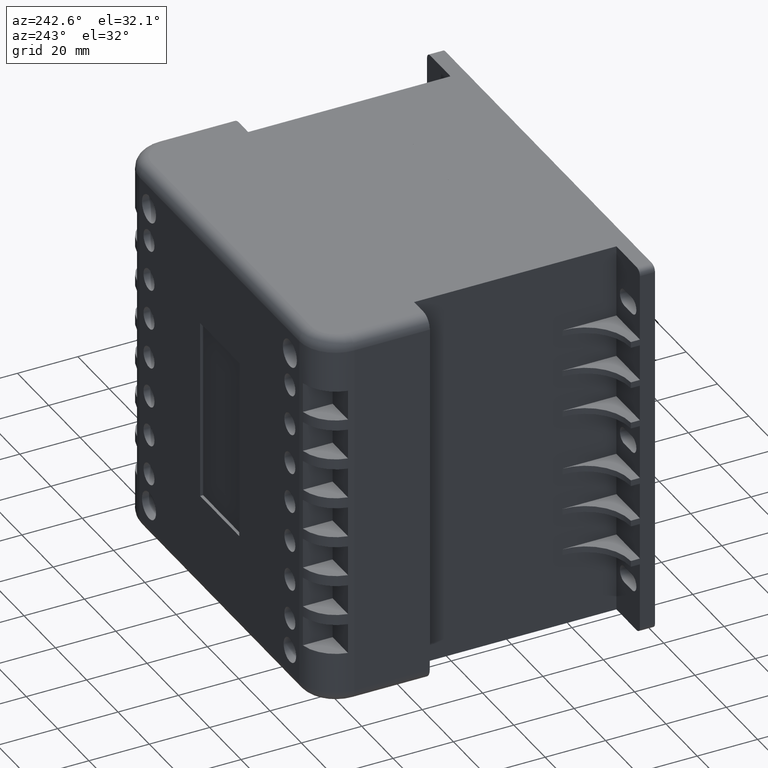
[diagram: clean part render]
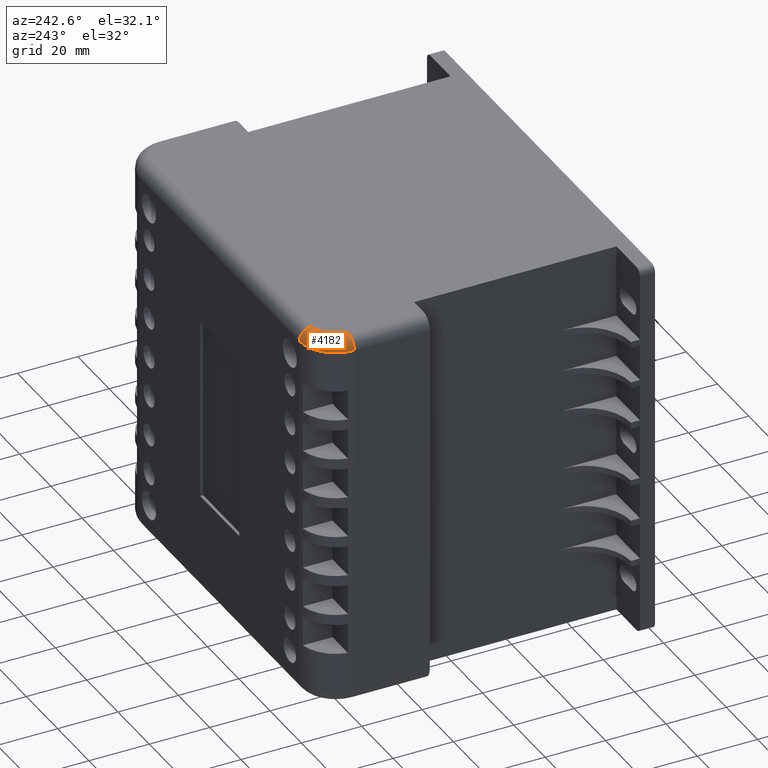
[diagram: same view with one face highlighted and labeled with its STEP entity id]
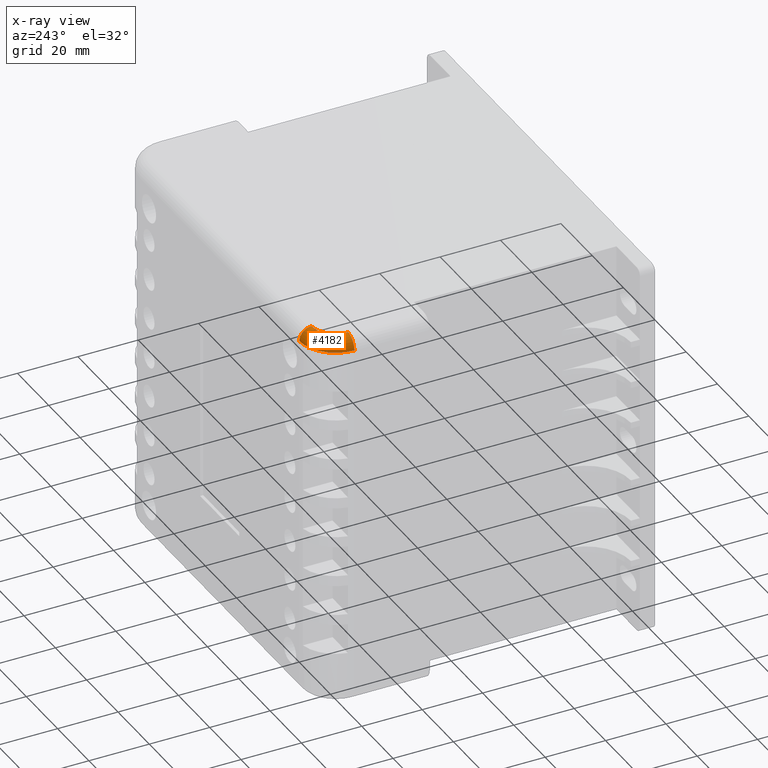
[diagram: x-ray of the same camera — body ghosted, the highlighted face saturated]
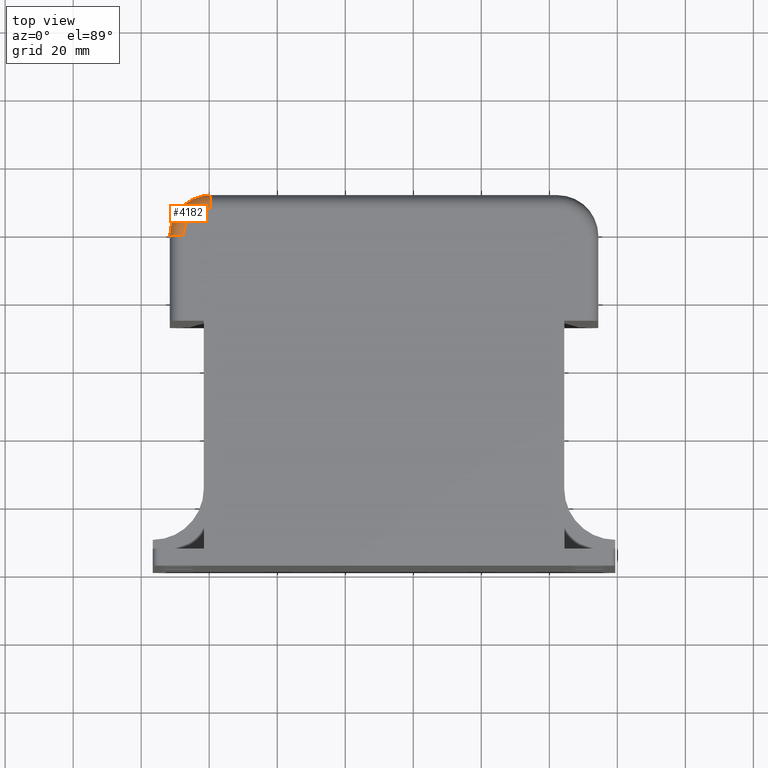
[diagram: same view with one face highlighted and labeled with its STEP entity id]
A machine part, auxiliary view. The second image highlights one B-rep face of the part: STEP entity #4182.
The next image is the same camera in x-ray: the body ghosted, the highlighted face saturated — about 0% of this face is hidden behind the body in this view.
A second angle (top view) of the same face is appended — the face is thin or edge-on in the first view.
In plain terms, the highlighted toroidal blend (fillet) surface has major radius 8 mm and minor (blend) radius 4 mm.
Its self-contained STEP definition (entity closure, byte-faithful):
#25=TOROIDAL_SURFACE('',#4638,8.,4.);
#206=CIRCLE('',#4637,4.);
#207=CIRCLE('',#4639,4.);
#208=CIRCLE('',#4640,12.);
#209=CIRCLE('',#4641,8.);
#469=FACE_OUTER_BOUND('',#728,.T.);
#728=EDGE_LOOP('',(#3242,#3243,#3244,#3245));
#1871=VERTEX_POINT('',#6749);
#1872=VERTEX_POINT('',#6751);
#1873=VERTEX_POINT('',#6755);
#1874=VERTEX_POINT('',#6756);
#2353=EDGE_CURVE('',#1871,#1872,#206,.T.);
#2355=EDGE_CURVE('',#1873,#1874,#207,.T.);
#2356=EDGE_CURVE('',#1874,#1872,#208,.T.);
#2357=EDGE_CURVE('',#1871,#1873,#209,.T.);
#3242=ORIENTED_EDGE('',*,*,#2355,.T.);
#3243=ORIENTED_EDGE('',*,*,#2356,.T.);
#3244=ORIENTED_EDGE('',*,*,#2353,.F.);
#3245=ORIENTED_EDGE('',*,*,#2357,.T.);
#4182=ADVANCED_FACE('',(#469),#25,.T.);
#4637=AXIS2_PLACEMENT_3D('',#6752,#5602,#5603);
#4638=AXIS2_PLACEMENT_3D('',#6754,#5605,#5606);
#4639=AXIS2_PLACEMENT_3D('',#6757,#5607,#5608);
#4640=AXIS2_PLACEMENT_3D('',#6758,#5609,#5610);
#4641=AXIS2_PLACEMENT_3D('',#6759,#5611,#5612);
#5602=DIRECTION('center_axis',(0.,-1.,0.));
#5603=DIRECTION('ref_axis',(0.,0.,1.));
#5605=DIRECTION('center_axis',(2.81961403079405E-16,0.,-1.));
#5606=DIRECTION('ref_axis',(-1.,0.,0.));
#5607=DIRECTION('center_axis',(-1.,0.,0.));
#5608=DIRECTION('ref_axis',(0.,0.,1.));
#5609=DIRECTION('center_axis',(-2.81961403079405E-16,0.,1.));
#5610=DIRECTION('ref_axis',(-0.707106781186548,0.707106781186547,-1.85037170770859E-16));
#5611=DIRECTION('center_axis',(2.81961403079405E-16,0.,-1.));
#5612=DIRECTION('ref_axis',(-0.707106781186548,0.707106781186547,-1.99376820150321E-16));
#6749=CARTESIAN_POINT('',(-122.,25.,126.));
#6751=CARTESIAN_POINT('',(-126.,25.,122.));
#6752=CARTESIAN_POINT('Origin',(-122.,25.,122.));
#6754=CARTESIAN_POINT('Origin',(-114.,25.,122.));
#6755=CARTESIAN_POINT('',(-114.,33.,126.));
#6756=CARTESIAN_POINT('',(-114.,37.,122.));
#6757=CARTESIAN_POINT('Origin',(-114.,33.,122.));
#6758=CARTESIAN_POINT('Origin',(-114.,25.,122.));
#6759=CARTESIAN_POINT('Origin',(-114.,25.,126.));